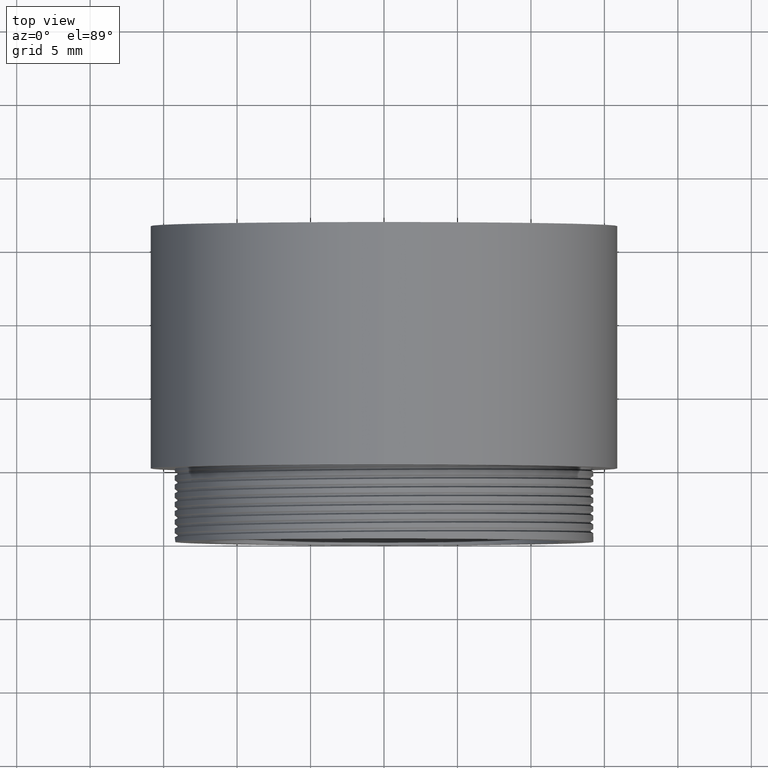
[diagram: clean part render]
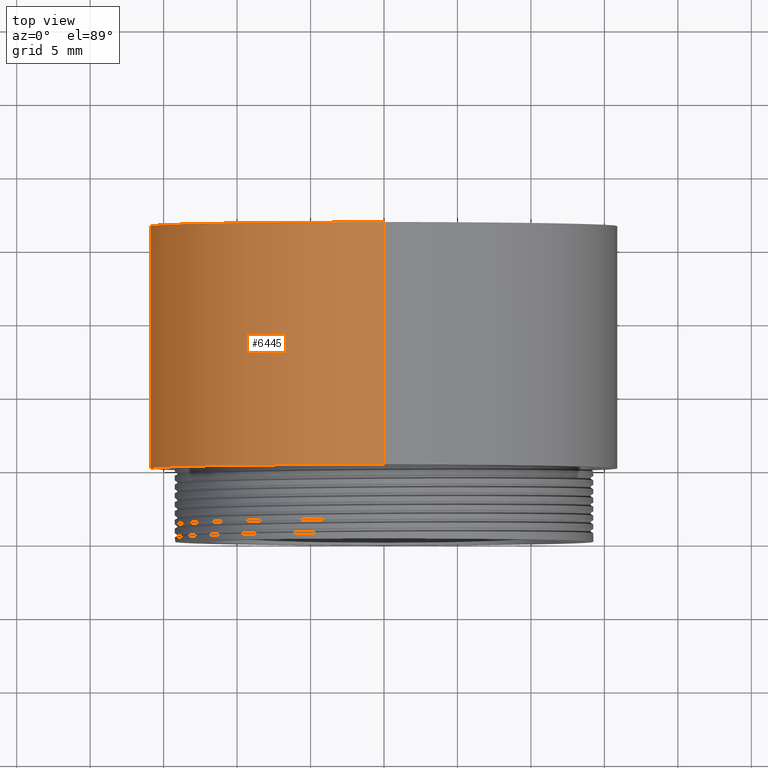
[diagram: same view with one face highlighted and labeled with its STEP entity id]
A machine part, top view. The second image highlights one B-rep face of the part: STEP entity #6445.
In plain terms, the highlighted cylindrical surface (partial cylindrical patch) has radius 15.875 mm, axis along (0, -1, 0).
Its self-contained STEP definition (entity closure, byte-faithful):
#74 = DIRECTION ( 'NONE',  ( 0.000000000000000000, -1.000000000000000000, 0.000000000000000000 ) ) ;
#144 = VERTEX_POINT ( 'NONE', #5049 ) ;
#299 = AXIS2_PLACEMENT_3D ( 'NONE', #4159, #6327, #3640 ) ;
#510 = CIRCLE ( 'NONE', #2766, 15.87500000000000000 ) ;
#799 = VERTEX_POINT ( 'NONE', #2647 ) ;
#925 = VERTEX_POINT ( 'NONE', #4124 ) ;
#1485 = CYLINDRICAL_SURFACE ( 'NONE', #299, 15.87500000000000000 ) ;
#1650 = AXIS2_PLACEMENT_3D ( 'NONE', #6557, #6632, #2238 ) ;
#1678 = ORIENTED_EDGE ( 'NONE', *, *, #5953, .F. ) ;
#1896 = DIRECTION ( 'NONE',  ( 0.000000000000000000, -1.000000000000000000, 0.000000000000000000 ) ) ;
#2040 = EDGE_CURVE ( 'NONE', #925, #4170, #5001, .T. ) ;
#2238 = DIRECTION ( 'NONE',  ( 0.000000000000000000, 0.000000000000000000, -1.000000000000000000 ) ) ;
#2316 = CARTESIAN_POINT ( 'NONE',  ( 1.944126793646424816E-15, 0.000000000000000000, 15.87500000000000000 ) ) ;
#2647 = CARTESIAN_POINT ( 'NONE',  ( 0.000000000000000000, 5.000000000000000000, -15.87500000000000000 ) ) ;
#2756 = EDGE_LOOP ( 'NONE', ( #4768, #2794, #3520, #1678 ) ) ;
#2766 = AXIS2_PLACEMENT_3D ( 'NONE', #3822, #74, #4839 ) ;
#2794 = ORIENTED_EDGE ( 'NONE', *, *, #3296, .T. ) ;
#3171 = DIRECTION ( 'NONE',  ( 0.000000000000000000, -1.000000000000000000, 0.000000000000000000 ) ) ;
#3296 = EDGE_CURVE ( 'NONE', #925, #144, #510, .T. ) ;
#3520 = ORIENTED_EDGE ( 'NONE', *, *, #4193, .T. ) ;
#3640 = DIRECTION ( 'NONE',  ( 0.000000000000000000, 0.000000000000000000, -1.000000000000000000 ) ) ;
#3794 = CIRCLE ( 'NONE', #1650, 15.87500000000000000 ) ;
#3822 = CARTESIAN_POINT ( 'NONE',  ( 0.000000000000000000, 21.50000000000000000, 0.000000000000000000 ) ) ;
#4124 = CARTESIAN_POINT ( 'NONE',  ( 1.944126793646424816E-15, 21.50000000000000000, 15.87500000000000000 ) ) ;
#4159 = CARTESIAN_POINT ( 'NONE',  ( 0.000000000000000000, 0.000000000000000000, 0.000000000000000000 ) ) ;
#4170 = VERTEX_POINT ( 'NONE', #4617 ) ;
#4193 = EDGE_CURVE ( 'NONE', #144, #799, #6217, .T. ) ;
#4214 = CARTESIAN_POINT ( 'NONE',  ( 0.000000000000000000, 0.000000000000000000, -15.87500000000000000 ) ) ;
#4617 = CARTESIAN_POINT ( 'NONE',  ( 1.944126793646424816E-15, 5.000000000000000000, 15.87500000000000000 ) ) ;
#4622 = FACE_OUTER_BOUND ( 'NONE', #2756, .T. ) ;
#4768 = ORIENTED_EDGE ( 'NONE', *, *, #2040, .F. ) ;
#4839 = DIRECTION ( 'NONE',  ( 0.000000000000000000, 0.000000000000000000, -1.000000000000000000 ) ) ;
#5001 = LINE ( 'NONE', #2316, #6756 ) ;
#5049 = CARTESIAN_POINT ( 'NONE',  ( 0.000000000000000000, 21.50000000000000000, -15.87500000000000000 ) ) ;
#5708 = VECTOR ( 'NONE', #3171, 1000.000000000000000 ) ;
#5953 = EDGE_CURVE ( 'NONE', #4170, #799, #3794, .T. ) ;
#6217 = LINE ( 'NONE', #4214, #5708 ) ;
#6327 = DIRECTION ( 'NONE',  ( 0.000000000000000000, -1.000000000000000000, 0.000000000000000000 ) ) ;
#6445 = ADVANCED_FACE ( 'NONE', ( #4622 ), #1485, .T. ) ;
#6557 = CARTESIAN_POINT ( 'NONE',  ( 0.000000000000000000, 5.000000000000000000, 0.000000000000000000 ) ) ;
#6632 = DIRECTION ( 'NONE',  ( 0.000000000000000000, -1.000000000000000000, 0.000000000000000000 ) ) ;
#6756 = VECTOR ( 'NONE', #1896, 1000.000000000000000 ) ;